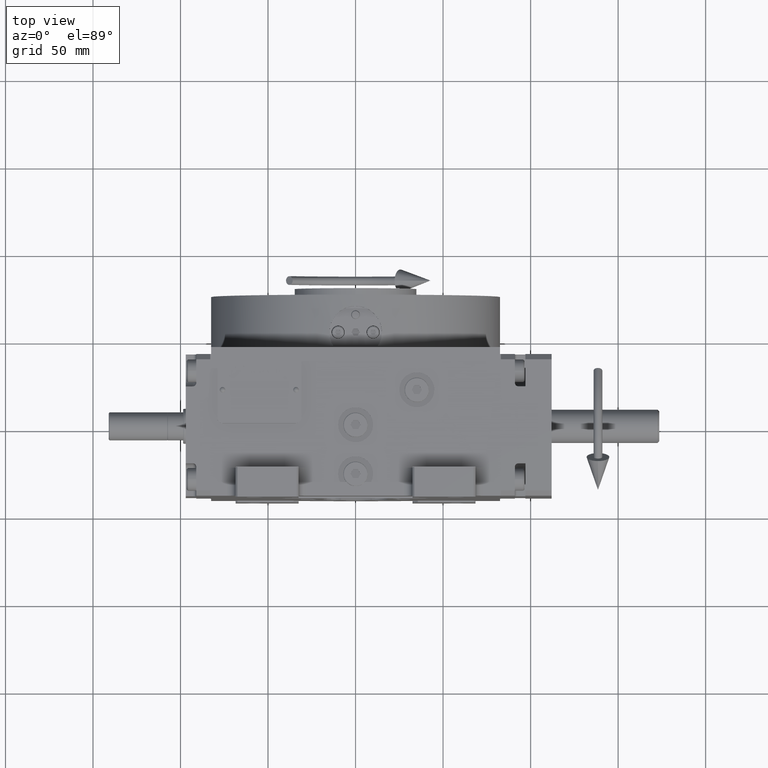
[diagram: clean part render]
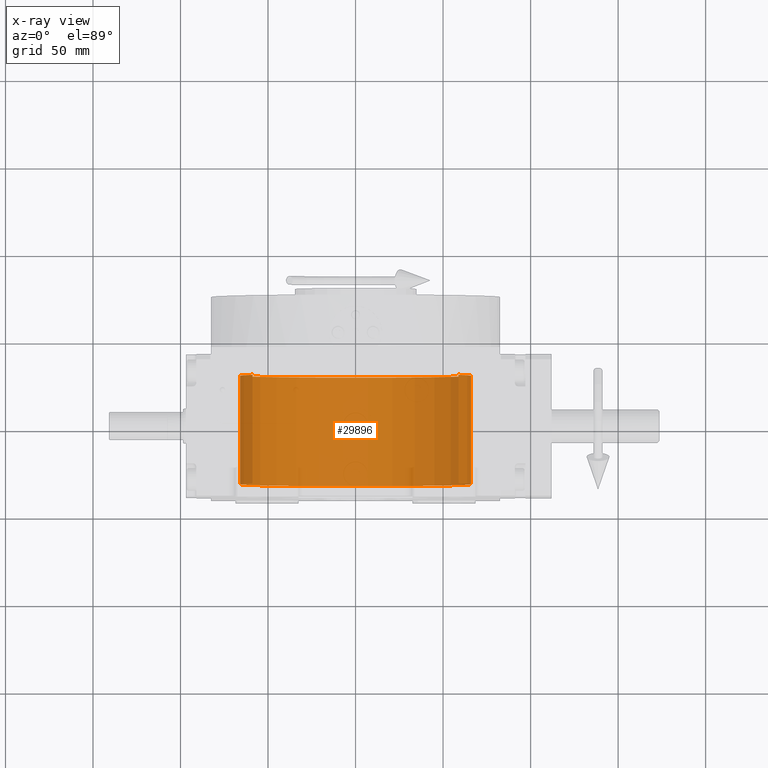
[diagram: x-ray — body ghosted, one internal face saturated and labeled with its STEP entity id]
A machine part, top view, then the same camera in x-ray: the body is ghosted and one INTERNAL B-rep face — a face not visible from any outside direction — is saturated and labeled: STEP entity #29896.
In plain terms, the highlighted cylindrical surface (partial cylindrical patch) has radius 66 mm, axis along (0, 1, 0).
Its self-contained STEP definition (entity closure, byte-faithful):
#75 = ORIENTED_EDGE ( 'NONE', *, *, #58201, .T. ) ;
#1732 = ORIENTED_EDGE ( 'NONE', *, *, #22209, .T. ) ;
#3392 = VECTOR ( 'NONE', #46915, 1000.000000000000000 ) ;
#3997 = EDGE_CURVE ( 'NONE', #9220, #68844, #17727, .T. ) ;
#4359 = VERTEX_POINT ( 'NONE', #37115 ) ;
#6592 = ORIENTED_EDGE ( 'NONE', *, *, #3997, .T. ) ;
#8253 = AXIS2_PLACEMENT_3D ( 'NONE', #62154, #66948, #45278 ) ;
#8353 = DIRECTION ( 'NONE',  ( -0.000000000000000000, 1.000000000000000000, -0.000000000000000000 ) ) ;
#9220 = VERTEX_POINT ( 'NONE', #11563 ) ;
#10982 = AXIS2_PLACEMENT_3D ( 'NONE', #65342, #37438, #59833 ) ;
#11563 = CARTESIAN_POINT ( 'NONE',  ( -58.78775382679628336, 30.00000000000001421, 30.00000000000000000 ) ) ;
#17479 = CARTESIAN_POINT ( 'NONE',  ( -58.78775382679628336, -31.99999999999998579, 30.00000000000000000 ) ) ;
#17727 = LINE ( 'NONE', #23237, #59599 ) ;
#18691 = CIRCLE ( 'NONE', #59692, 66.00000000000000000 ) ;
#22209 = EDGE_CURVE ( 'NONE', #59389, #4359, #47988, .T. ) ;
#23237 = CARTESIAN_POINT ( 'NONE',  ( -58.78775382679628336, 98.15000000000000568, 30.00000000000000000 ) ) ;
#24508 = DIRECTION ( 'NONE',  ( 0.000000000000000000, 0.000000000000000000, 1.000000000000000000 ) ) ;
#24554 = CARTESIAN_POINT ( 'NONE',  ( 58.78775382679628336, 98.15000000000000568, 30.00000000000000000 ) ) ;
#25590 = CARTESIAN_POINT ( 'NONE',  ( 58.78775382679628336, -31.99999999999998579, 30.00000000000000000 ) ) ;
#29896 = ADVANCED_FACE ( 'NONE', ( #64992 ), #42960, .F. ) ;
#36369 = ORIENTED_EDGE ( 'NONE', *, *, #68409, .F. ) ;
#37115 = CARTESIAN_POINT ( 'NONE',  ( 58.78775382679628336, 30.00000000000001421, 30.00000000000000000 ) ) ;
#37438 = DIRECTION ( 'NONE',  ( -0.000000000000000000, 1.000000000000000000, -0.000000000000000000 ) ) ;
#41405 = CARTESIAN_POINT ( 'NONE',  ( 0.000000000000000000, -31.99999999999998579, 0.000000000000000000 ) ) ;
#42960 = CYLINDRICAL_SURFACE ( 'NONE', #10982, 66.00000000000000000 ) ;
#45278 = DIRECTION ( 'NONE',  ( 0.000000000000000000, 0.000000000000000000, 1.000000000000000000 ) ) ;
#46915 = DIRECTION ( 'NONE',  ( -0.000000000000000000, 1.000000000000000000, -0.000000000000000000 ) ) ;
#47988 = LINE ( 'NONE', #24554, #3392 ) ;
#50752 = DIRECTION ( 'NONE',  ( 0.000000000000000000, -1.000000000000000000, 0.000000000000000000 ) ) ;
#54689 = EDGE_LOOP ( 'NONE', ( #6592, #36369, #1732, #75 ) ) ;
#58201 = EDGE_CURVE ( 'NONE', #4359, #9220, #65653, .T. ) ;
#59389 = VERTEX_POINT ( 'NONE', #25590 ) ;
#59599 = VECTOR ( 'NONE', #50752, 1000.000000000000000 ) ;
#59692 = AXIS2_PLACEMENT_3D ( 'NONE', #41405, #8353, #24508 ) ;
#59833 = DIRECTION ( 'NONE',  ( 0.000000000000000000, 0.000000000000000000, 1.000000000000000000 ) ) ;
#62154 = CARTESIAN_POINT ( 'NONE',  ( 0.000000000000000000, 30.00000000000001421, 0.000000000000000000 ) ) ;
#64992 = FACE_OUTER_BOUND ( 'NONE', #54689, .T. ) ;
#65342 = CARTESIAN_POINT ( 'NONE',  ( 0.000000000000000000, 98.15000000000000568, 0.000000000000000000 ) ) ;
#65653 = CIRCLE ( 'NONE', #8253, 66.00000000000000000 ) ;
#66948 = DIRECTION ( 'NONE',  ( -0.000000000000000000, 1.000000000000000000, -0.000000000000000000 ) ) ;
#68409 = EDGE_CURVE ( 'NONE', #59389, #68844, #18691, .T. ) ;
#68844 = VERTEX_POINT ( 'NONE', #17479 ) ;